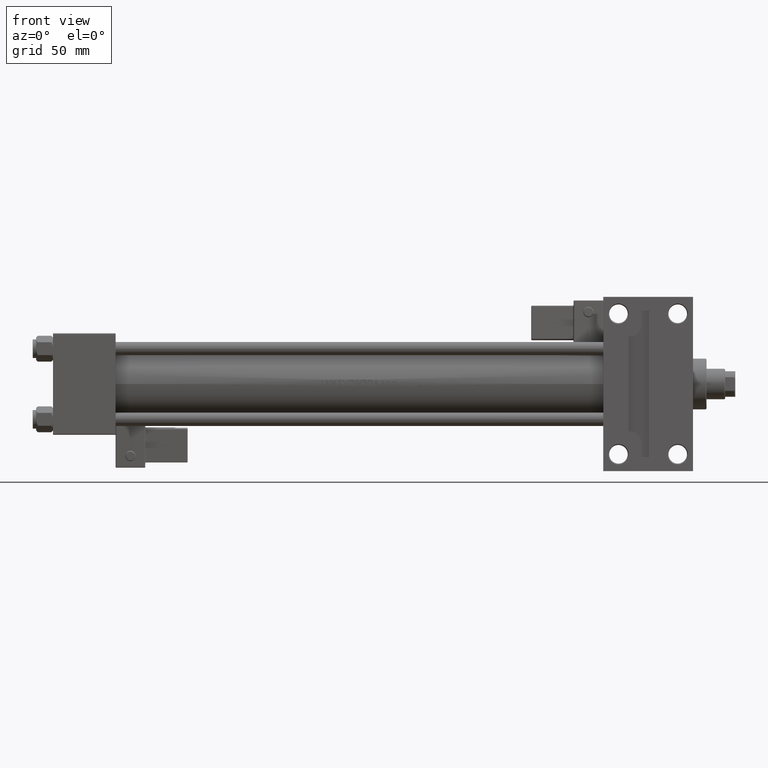
[diagram: clean part render]
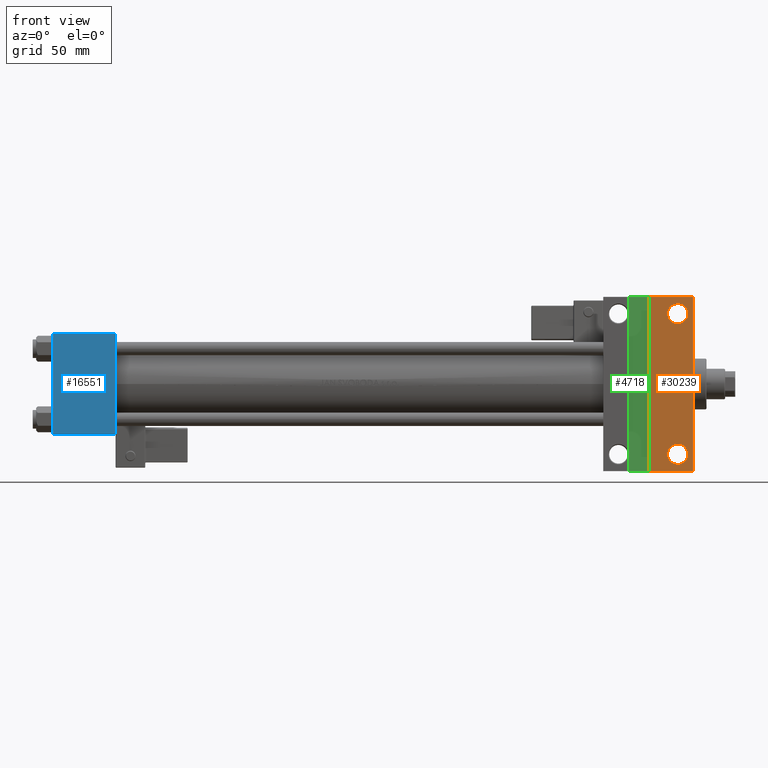
[diagram: same view with three faces highlighted in distinct colors, each labeled with its STEP entity id]
A machine part, front view with three faces highlighted in distinct colors.
Their STEP definitions:

[orange] entity #30239 — the highlighted planar face has unit normal (0, -1, -0).
#2153 = CARTESIAN_POINT ( 'NONE',  ( 368.9999999999998863, 41.50000000000000000, -29.99999999999999289 ) ) ;
#2226 = EDGE_CURVE ( 'NONE', #47993, #25456, #40410, .T. ) ;
#2485 = ORIENTED_EDGE ( 'NONE', *, *, #2226, .T. ) ;
#3420 = CIRCLE ( 'NONE', #14891, 5.999499999999880373 ) ;
#4554 = DIRECTION ( 'NONE',  ( 0.000000000000000000, 1.000000000000000000, 1.156482317317871478E-16 ) ) ;
#4809 = DIRECTION ( 'NONE',  ( -1.000000000000000000, -0.000000000000000000, -0.000000000000000000 ) ) ;
#5494 = ORIENTED_EDGE ( 'NONE', *, *, #37975, .T. ) ;
#6313 = DIRECTION ( 'NONE',  ( -0.000000000000000000, -1.156482317317871478E-16, 1.000000000000000000 ) ) ;
#6668 = EDGE_LOOP ( 'NONE', ( #9182, #2485 ) ) ;
#9182 = ORIENTED_EDGE ( 'NONE', *, *, #25428, .T. ) ;
#9784 = ORIENTED_EDGE ( 'NONE', *, *, #36192, .T. ) ;
#9906 = CARTESIAN_POINT ( 'NONE',  ( 368.9999999999998863, 41.50000000000000000, -29.99999999999999289 ) ) ;
#11106 = VECTOR ( 'NONE', #31801, 1000.000000000000000 ) ;
#11452 = VERTEX_POINT ( 'NONE', #36081 ) ;
#11510 = ORIENTED_EDGE ( 'NONE', *, *, #26424, .T. ) ;
#11739 = LINE ( 'NONE', #31342, #21717 ) ;
#11882 = VERTEX_POINT ( 'NONE', #24741 ) ;
#12381 = DIRECTION ( 'NONE',  ( 0.000000000000000000, 1.000000000000000000, 0.000000000000000000 ) ) ;
#12383 = CARTESIAN_POINT ( 'NONE',  ( 352.0000000000000000, -51.49999999999997868, -29.99999999999999645 ) ) ;
#12503 = FACE_BOUND ( 'NONE', #19841, .T. ) ;
#12899 = VERTEX_POINT ( 'NONE', #48682 ) ;
#13213 = CARTESIAN_POINT ( 'NONE',  ( 374.9994999999998981, 41.50000000000000000, -29.99999999999999289 ) ) ;
#13441 = CARTESIAN_POINT ( 'NONE',  ( 363.0004999999998745, 41.50000000000000000, -29.99999999999999289 ) ) ;
#13529 = LINE ( 'NONE', #24372, #26894 ) ;
#14891 = AXIS2_PLACEMENT_3D ( 'NONE', #50506, #19042, #19297 ) ;
#15302 = CARTESIAN_POINT ( 'NONE',  ( 377.9999999999999432, 30.00000000000000000, -29.99999999999999289 ) ) ;
#15858 = DIRECTION ( 'NONE',  ( 1.000000000000000000, -2.618450529776310288E-16, 0.000000000000000000 ) ) ;
#16374 = DIRECTION ( 'NONE',  ( 0.000000000000000000, 1.156482317317871478E-16, -1.000000000000000000 ) ) ;
#17523 = EDGE_CURVE ( 'NONE', #12899, #21305, #47719, .T. ) ;
#19042 = DIRECTION ( 'NONE',  ( -0.000000000000000000, -1.156482317317871478E-16, 1.000000000000000000 ) ) ;
#19171 = CARTESIAN_POINT ( 'NONE',  ( 363.0004999999999882, -41.50000000000000000, -30.00000000000000000 ) ) ;
#19297 = DIRECTION ( 'NONE',  ( 0.000000000000000000, 1.000000000000000000, 0.000000000000000000 ) ) ;
#19841 = EDGE_LOOP ( 'NONE', ( #5494, #28695 ) ) ;
#20643 = EDGE_CURVE ( 'NONE', #11882, #29665, #3420, .T. ) ;
#21305 = VERTEX_POINT ( 'NONE', #23226 ) ;
#21717 = VECTOR ( 'NONE', #15858, 1000.000000000000000 ) ;
#21771 = DIRECTION ( 'NONE',  ( 0.000000000000000000, 1.000000000000000000, 0.000000000000000000 ) ) ;
#23226 = CARTESIAN_POINT ( 'NONE',  ( 352.0000000000000000, -51.49999999999997868, -29.99999999999999645 ) ) ;
#23543 = ORIENTED_EDGE ( 'NONE', *, *, #29623, .T. ) ;
#23610 = FACE_BOUND ( 'NONE', #6668, .T. ) ;
#23667 = AXIS2_PLACEMENT_3D ( 'NONE', #44638, #40794, #12381 ) ;
#24372 = CARTESIAN_POINT ( 'NONE',  ( 324.9999999999999432, -51.50000000000002842, -29.99999999999999645 ) ) ;
#24732 = AXIS2_PLACEMENT_3D ( 'NONE', #9906, #6313, #21771 ) ;
#24741 = CARTESIAN_POINT ( 'NONE',  ( 374.9994999999997844, -41.50000000000000000, -30.00000000000000000 ) ) ;
#25428 = EDGE_CURVE ( 'NONE', #25456, #47993, #25801, .T. ) ;
#25456 = VERTEX_POINT ( 'NONE', #13441 ) ;
#25801 = CIRCLE ( 'NONE', #30741, 5.999499999999990507 ) ;
#26424 = EDGE_CURVE ( 'NONE', #12899, #11452, #11739, .T. ) ;
#26894 = VECTOR ( 'NONE', #4809, 1000.000000000000000 ) ;
#28249 = PLANE ( 'NONE',  #31755 ) ;
#28695 = ORIENTED_EDGE ( 'NONE', *, *, #20643, .T. ) ;
#29391 = VERTEX_POINT ( 'NONE', #41974 ) ;
#29623 = EDGE_CURVE ( 'NONE', #11452, #29391, #38801, .T. ) ;
#29665 = VERTEX_POINT ( 'NONE', #19171 ) ;
#29702 = DIRECTION ( 'NONE',  ( 0.000000000000000000, 1.000000000000000000, 0.000000000000000000 ) ) ;
#30239 = ADVANCED_FACE ( 'NONE', ( #39880, #12503, #23610 ), #28249, .T. ) ;
#30741 = AXIS2_PLACEMENT_3D ( 'NONE', #2153, #37199, #29702 ) ;
#31342 = CARTESIAN_POINT ( 'NONE',  ( 324.9999999999999432, 51.49999999999997868, -29.99999999999999645 ) ) ;
#31755 = AXIS2_PLACEMENT_3D ( 'NONE', #31870, #16374, #4554 ) ;
#31801 = DIRECTION ( 'NONE',  ( 0.000000000000000000, -1.000000000000000000, -1.156482317317871478E-16 ) ) ;
#31870 = CARTESIAN_POINT ( 'NONE',  ( 377.9999999999999432, 30.00000000000000000, -29.99999999999999289 ) ) ;
#32463 = VECTOR ( 'NONE', #43873, 1000.000000000000000 ) ;
#36081 = CARTESIAN_POINT ( 'NONE',  ( 378.0000000000000000, 51.49999999999996447, -29.99999999999999645 ) ) ;
#36192 = EDGE_CURVE ( 'NONE', #29391, #21305, #13529, .T. ) ;
#37199 = DIRECTION ( 'NONE',  ( -0.000000000000000000, -1.156482317317871478E-16, 1.000000000000000000 ) ) ;
#37975 = EDGE_CURVE ( 'NONE', #29665, #11882, #48383, .T. ) ;
#38801 = LINE ( 'NONE', #15302, #11106 ) ;
#39880 = FACE_OUTER_BOUND ( 'NONE', #48752, .T. ) ;
#40410 = CIRCLE ( 'NONE', #24732, 5.999499999999990507 ) ;
#40794 = DIRECTION ( 'NONE',  ( -0.000000000000000000, -1.156482317317871478E-16, 1.000000000000000000 ) ) ;
#41974 = CARTESIAN_POINT ( 'NONE',  ( 377.9999999999999432, -51.50000000000002842, -29.99999999999999645 ) ) ;
#43148 = ORIENTED_EDGE ( 'NONE', *, *, #17523, .F. ) ;
#43873 = DIRECTION ( 'NONE',  ( -0.000000000000000000, -1.000000000000000000, -0.000000000000000000 ) ) ;
#44638 = CARTESIAN_POINT ( 'NONE',  ( 368.9999999999998863, -41.50000000000000000, -30.00000000000000000 ) ) ;
#47719 = LINE ( 'NONE', #12383, #32463 ) ;
#47993 = VERTEX_POINT ( 'NONE', #13213 ) ;
#48383 = CIRCLE ( 'NONE', #23667, 5.999499999999880373 ) ;
#48682 = CARTESIAN_POINT ( 'NONE',  ( 352.0000000000000000, 51.49999999999997868, -29.99999999999999645 ) ) ;
#48752 = EDGE_LOOP ( 'NONE', ( #43148, #11510, #23543, #9784 ) ) ;
#50506 = CARTESIAN_POINT ( 'NONE',  ( 368.9999999999998863, -41.50000000000000000, -30.00000000000000000 ) ) ;

[blue] entity #16551 — the highlighted planar face has unit normal (0, -1, -0).
#1490 = CARTESIAN_POINT ( 'NONE',  ( 37.00000000000000000, 29.49999999999997868, -30.00000000000000000 ) ) ;
#1771 = ORIENTED_EDGE ( 'NONE', *, *, #4442, .T. ) ;
#2610 = EDGE_LOOP ( 'NONE', ( #50777, #19873, #1771, #35841 ) ) ;
#3370 = CARTESIAN_POINT ( 'NONE',  ( 37.00000000000000000, -29.50000000000000000, -30.00000000000000711 ) ) ;
#4442 = EDGE_CURVE ( 'NONE', #15379, #12748, #48583, .T. ) ;
#5373 = DIRECTION ( 'NONE',  ( 0.000000000000000000, 1.000000000000000000, 1.156482317317871725E-16 ) ) ;
#5541 = CARTESIAN_POINT ( 'NONE',  ( 37.00000000000000000, 29.99999999999999289, -30.00000000000000000 ) ) ;
#6356 = DIRECTION ( 'NONE',  ( 1.000000000000000000, 0.000000000000000000, 0.000000000000000000 ) ) ;
#7743 = EDGE_CURVE ( 'NONE', #28323, #26881, #50815, .T. ) ;
#7981 = CARTESIAN_POINT ( 'NONE',  ( 0.000000000000000000, -29.50000000000001066, -30.00000000000000711 ) ) ;
#9223 = PLANE ( 'NONE',  #28420 ) ;
#9742 = CARTESIAN_POINT ( 'NONE',  ( 37.00000000000000000, 29.99999999999999289, -30.00000000000000000 ) ) ;
#12347 = VECTOR ( 'NONE', #18144, 1000.000000000000000 ) ;
#12748 = VERTEX_POINT ( 'NONE', #3370 ) ;
#13064 = FACE_OUTER_BOUND ( 'NONE', #2610, .T. ) ;
#14682 = LINE ( 'NONE', #7981, #32742 ) ;
#15379 = VERTEX_POINT ( 'NONE', #19354 ) ;
#16551 = ADVANCED_FACE ( 'NONE', ( #13064 ), #9223, .T. ) ;
#18144 = DIRECTION ( 'NONE',  ( 0.000000000000000000, -1.000000000000000000, -1.156482317317871725E-16 ) ) ;
#18853 = CARTESIAN_POINT ( 'NONE',  ( 0.000000000000000000, 29.99999999999999289, -30.00000000000000000 ) ) ;
#19354 = CARTESIAN_POINT ( 'NONE',  ( 37.00000000000000000, 29.49999999999997868, -30.00000000000000000 ) ) ;
#19873 = ORIENTED_EDGE ( 'NONE', *, *, #48536, .T. ) ;
#22902 = CARTESIAN_POINT ( 'NONE',  ( 0.000000000000000000, 29.49999999999997868, -30.00000000000000000 ) ) ;
#26881 = VERTEX_POINT ( 'NONE', #38439 ) ;
#28323 = VERTEX_POINT ( 'NONE', #22902 ) ;
#28420 = AXIS2_PLACEMENT_3D ( 'NONE', #9742, #48940, #5373 ) ;
#32742 = VECTOR ( 'NONE', #39210, 1000.000000000000000 ) ;
#34583 = DIRECTION ( 'NONE',  ( 0.000000000000000000, -1.000000000000000000, -1.156482317317871725E-16 ) ) ;
#35841 = ORIENTED_EDGE ( 'NONE', *, *, #38062, .T. ) ;
#36434 = VECTOR ( 'NONE', #6356, 1000.000000000000000 ) ;
#37566 = LINE ( 'NONE', #1490, #36434 ) ;
#38062 = EDGE_CURVE ( 'NONE', #12748, #26881, #14682, .T. ) ;
#38439 = CARTESIAN_POINT ( 'NONE',  ( 0.000000000000000000, -29.50000000000000000, -30.00000000000000711 ) ) ;
#38875 = VECTOR ( 'NONE', #34583, 1000.000000000000000 ) ;
#39210 = DIRECTION ( 'NONE',  ( -1.000000000000000000, 0.000000000000000000, 0.000000000000000000 ) ) ;
#48536 = EDGE_CURVE ( 'NONE', #28323, #15379, #37566, .T. ) ;
#48583 = LINE ( 'NONE', #5541, #12347 ) ;
#48940 = DIRECTION ( 'NONE',  ( 0.000000000000000000, 1.156482317317871725E-16, -1.000000000000000000 ) ) ;
#50777 = ORIENTED_EDGE ( 'NONE', *, *, #7743, .F. ) ;
#50815 = LINE ( 'NONE', #18853, #38875 ) ;

[green] entity #4718 — the highlighted planar face has unit normal (0, -1, 0).
#40 = AXIS2_PLACEMENT_3D ( 'NONE', #12923, #4211, #35902 ) ;
#647 = ORIENTED_EDGE ( 'NONE', *, *, #35628, .T. ) ;
#3600 = CARTESIAN_POINT ( 'NONE',  ( 340.0000000000000000, 51.49999999999997868, -25.99999999999999645 ) ) ;
#4089 = DIRECTION ( 'NONE',  ( 1.000000000000000000, 0.000000000000000000, 0.000000000000000000 ) ) ;
#4211 = DIRECTION ( 'NONE',  ( 0.000000000000000000, 0.000000000000000000, -1.000000000000000000 ) ) ;
#4718 = ADVANCED_FACE ( 'NONE', ( #8308 ), #4962, .T. ) ;
#4962 = PLANE ( 'NONE',  #40 ) ;
#7222 = VERTEX_POINT ( 'NONE', #19530 ) ;
#8308 = FACE_OUTER_BOUND ( 'NONE', #42304, .T. ) ;
#8661 = LINE ( 'NONE', #27984, #39981 ) ;
#9527 = VECTOR ( 'NONE', #4089, 1000.000000000000000 ) ;
#9611 = EDGE_CURVE ( 'NONE', #47219, #24796, #32674, .T. ) ;
#12800 = CARTESIAN_POINT ( 'NONE',  ( 340.0000000000000000, -51.49999999999997868, -25.99999999999999645 ) ) ;
#12923 = CARTESIAN_POINT ( 'NONE',  ( 0.000000000000000000, 0.000000000000000000, -25.99999999999999645 ) ) ;
#13717 = DIRECTION ( 'NONE',  ( 0.000000000000000000, 1.000000000000000000, 0.000000000000000000 ) ) ;
#14061 = ORIENTED_EDGE ( 'NONE', *, *, #34071, .T. ) ;
#16056 = CARTESIAN_POINT ( 'NONE',  ( 340.0000000000000000, -51.49999999999997868, -25.99999999999999645 ) ) ;
#16166 = LINE ( 'NONE', #3600, #9527 ) ;
#18642 = ORIENTED_EDGE ( 'NONE', *, *, #9611, .T. ) ;
#19530 = CARTESIAN_POINT ( 'NONE',  ( 340.0000000000000000, 51.49999999999997868, -25.99999999999999645 ) ) ;
#21119 = VECTOR ( 'NONE', #13717, 1000.000000000000000 ) ;
#24796 = VERTEX_POINT ( 'NONE', #40833 ) ;
#26283 = ORIENTED_EDGE ( 'NONE', *, *, #30192, .T. ) ;
#27742 = DIRECTION ( 'NONE',  ( -0.000000000000000000, -1.000000000000000000, -0.000000000000000000 ) ) ;
#27984 = CARTESIAN_POINT ( 'NONE',  ( 352.0000000000000000, -51.49999999999997868, -25.99999999999999645 ) ) ;
#29325 = DIRECTION ( 'NONE',  ( -1.000000000000000000, -0.000000000000000000, -0.000000000000000000 ) ) ;
#30192 = EDGE_CURVE ( 'NONE', #35251, #47219, #8661, .T. ) ;
#32674 = LINE ( 'NONE', #12800, #47151 ) ;
#34071 = EDGE_CURVE ( 'NONE', #7222, #35251, #16166, .T. ) ;
#35251 = VERTEX_POINT ( 'NONE', #36503 ) ;
#35628 = EDGE_CURVE ( 'NONE', #24796, #7222, #40319, .T. ) ;
#35902 = DIRECTION ( 'NONE',  ( -1.000000000000000000, 0.000000000000000000, -0.000000000000000000 ) ) ;
#36503 = CARTESIAN_POINT ( 'NONE',  ( 352.0000000000000000, 51.49999999999997868, -25.99999999999999645 ) ) ;
#39981 = VECTOR ( 'NONE', #27742, 1000.000000000000000 ) ;
#40319 = LINE ( 'NONE', #16056, #21119 ) ;
#40833 = CARTESIAN_POINT ( 'NONE',  ( 340.0000000000000000, -51.49999999999997868, -25.99999999999999645 ) ) ;
#42304 = EDGE_LOOP ( 'NONE', ( #26283, #18642, #647, #14061 ) ) ;
#45977 = CARTESIAN_POINT ( 'NONE',  ( 352.0000000000000000, -51.50000000000002842, -25.99999999999999645 ) ) ;
#47151 = VECTOR ( 'NONE', #29325, 1000.000000000000000 ) ;
#47219 = VERTEX_POINT ( 'NONE', #45977 ) ;